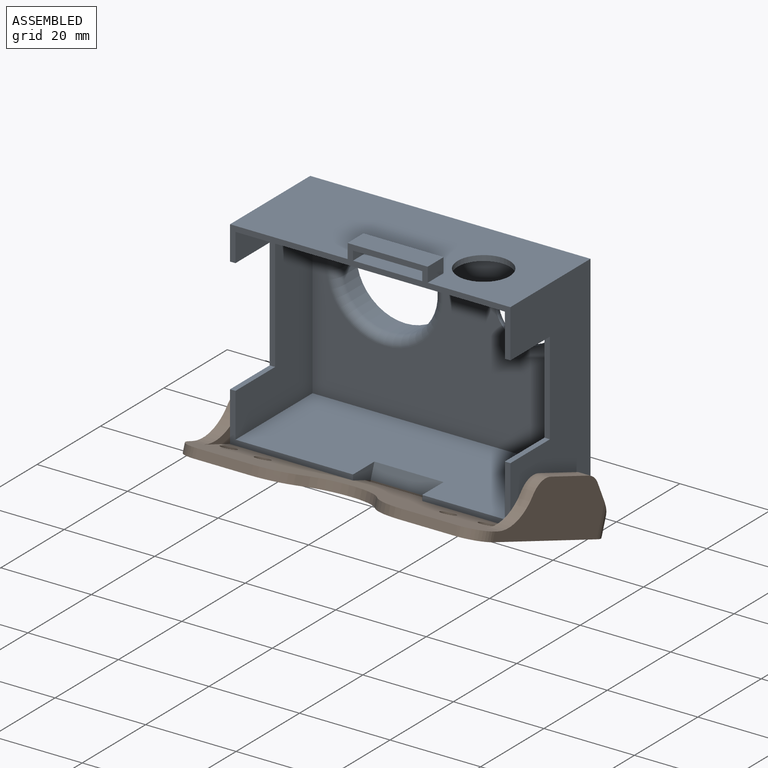
[diagram: assembled view]
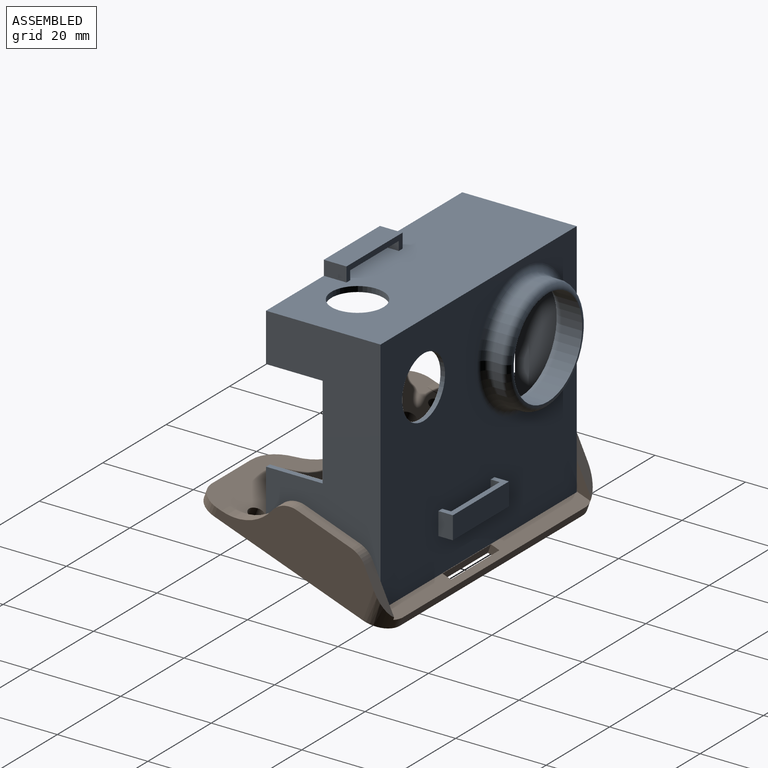
[diagram: assembled view, second angle]
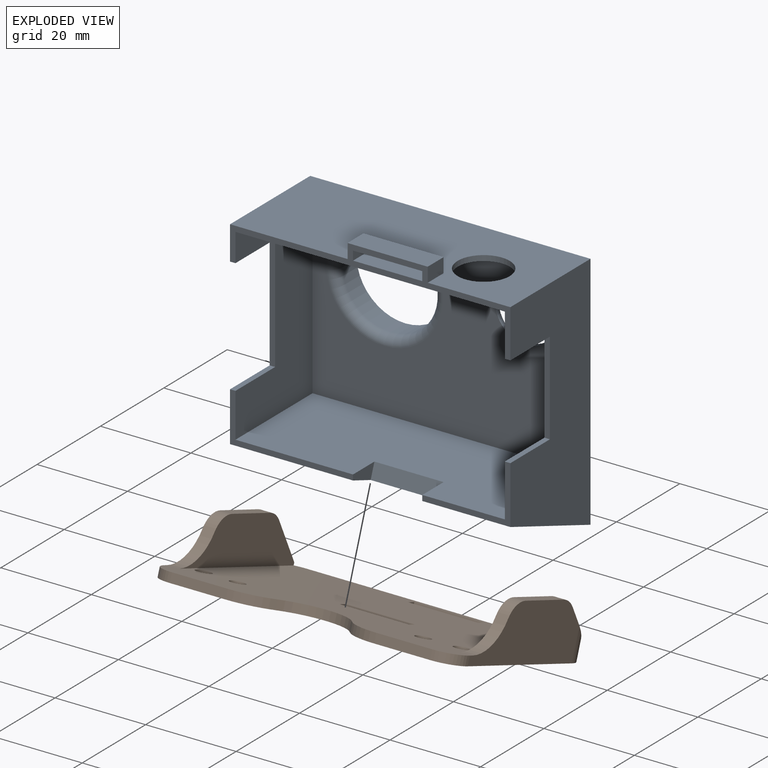
[diagram: exploded view]
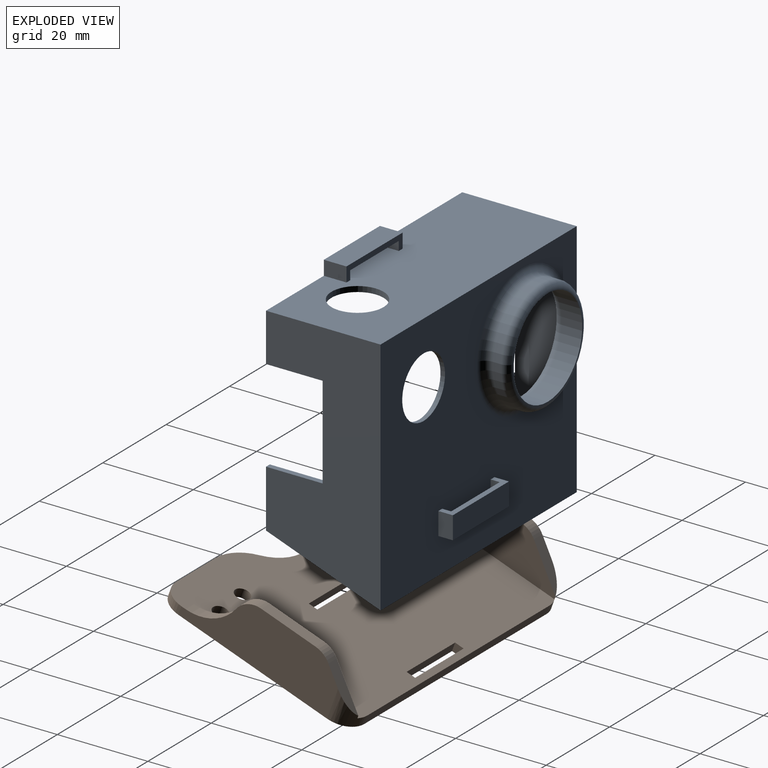
[diagram: exploded view, second angle]
ASSEMBLY  parts=2 mates=2
PART A: 44 faces, bbox 62x30.9x56.3 mm
  f0: plane 19.45x12.75mm, normal (0,1,0), area 37.2mm2, adj f5,f11,f14,f29,f31,f43
  f1: plane 27.17x10.95mm, normal (0,1,0), area 44.3mm2, adj f3,f11,f12,f25,f31,f41
  f2: plane 61.92x13.85mm, normal (0,1,0), area 119.2mm2, adj f3,f4,f5,f12,f13,f14,f17,f18
  f3: plane 53.11x25.3mm, normal (1,0,0), area 908.4mm2, adj f1,f2,f4,f8,f25,f26,f27,f31
  f4: plane 61.92x25.3mm, normal (0,0,1), area 1450.7mm2, adj f2,f3,f5,f8,f17,f19,f20,f22
  f5: plane 53.11x25.3mm, normal (-1,0,0), area 970.9mm2, adj f0,f2,f4,f8,f28,f29,f30,f31
  f6: cylinder r=10.82mm len=21.65mm, axis (0,1,0), area 312.9mm2, adj f16,f32
  f7: cylinder r=6.75mm len=13.5mm, axis (0,1,0), area 42.4mm2, adj f8,f9
  f8: plane 61.92x53.11mm, normal (0,-1,0), area 2479.6mm2, adj f3,f4,f5,f7,f15,f31,f33,f34
  f9: plane 59.52x41.5mm, normal (0,1,0), area 1810.2mm2, adj f7,f11,f12,f13,f14,f16
  f10: cylinder r=12.43mm len=24.85mm, axis (0,1,0), area 156.1mm2, adj f15,f32
  f11: plane 59.52x24.3mm, normal (0,0,1), area 1343.2mm2, adj f0,f1,f9,f12,f14,f41,f42,f43
  f12: plane 41.5x24.3mm, normal (-1,0,0), area 689.7mm2, adj f1,f2,f9,f11,f13,f25,f26,f27
  f13: plane 59.52x24.3mm, normal (0,0,-1), area 1342.5mm2, adj f2,f9,f12,f14,f24
  f14: plane 41.5x24.3mm, normal (1,0,0), area 752.2mm2, adj f0,f2,f9,f11,f13,f28,f29,f30
  f15: torus R=14.43mm, axis (0,-1,0), area 259.6mm2, adj f8,f10
  f16: torus R=12.82mm, axis (0,-1,0), area 228mm2, adj f6,f9
  f17: plane 5x3.2mm, normal (-1,0,0), area 16mm2, adj f2,f4,f18,f23
  f18: plane 17.7x5mm, normal (0,0,1), area 88.5mm2, adj f2,f17,f19,f23
  f19: plane 5x3.2mm, normal (1,0,0), area 16mm2, adj f2,f4,f18,f23
  f20: plane 5x2mm, normal (-1,0,0), area 10mm2, adj f2,f4,f21,f23
  f21: plane 15.3x5mm, normal (0,0,-1), area 76.5mm2, adj f2,f20,f22,f23
  f22: plane 5x2mm, normal (1,0,0), area 10mm2, adj f2,f4,f21,f23
  f23: plane 17.7x3.2mm, normal (0,-1,0), area 26mm2, adj f4,f17,f18,f19,f20,f21,f22
  f24: cylinder r=5.75mm len=11.5mm, axis (0,0,-1), area 43.4mm2, adj f4,f13
  f25: plane 12.5x1.2mm, normal (0,0,1), area 15mm2, adj f1,f3,f12,f26
  f26: plane 25.5x1.2mm, normal (0,1,0), area 30.6mm2, adj f3,f12,f25,f27
  f27: plane 12.5x1.2mm, normal (0,0,-1), area 15mm2, adj f2,f3,f12,f26
  f28: plane 12.5x1.2mm, normal (0,0,-1), area 15mm2, adj f2,f5,f14,f30
  f29: plane 12.5x1.2mm, normal (0,0,1), area 15mm2, adj f0,f5,f14,f30
  f30: plane 20.5x1.2mm, normal (0,1,0), area 24.6mm2, adj f5,f14,f28,f29
  f31: plane 61.92x25.3mm, normal (0,0.34,-0.94), area 1576.5mm2, adj f0,f1,f3,f5,f8,f41,f42,f43
  f32: torus R=10.82mm, axis (0,-1,0), area 187mm2, adj f6,f10
  f33: plane 5x3.2mm, normal (1,0,0), area 16mm2, adj f8,f38,f39,f40
  f34: plane 5x2mm, normal (-1,0,0), area 10mm2, adj f8,f35,f39,f40
  f35: plane 15.3x5mm, normal (0,1,0), area 76.5mm2, adj f34,f36,f39,f40
  f36: plane 5x2mm, normal (1,0,0), area 10mm2, adj f8,f35,f39,f40
  f37: plane 5x3.2mm, normal (-1,0,0), area 16mm2, adj f8,f38,f39,f40
  f38: plane 17.7x5mm, normal (0,-1,0), area 88.5mm2, adj f33,f37,f39,f40
  f39: plane 17.7x3.2mm, normal (0,0,1), area 26mm2, adj f8,f33,f34,f35,f36,f37,f38
  f40: plane 17.7x3.2mm, normal (0,0,-1), area 26mm2, adj f8,f33,f34,f35,f36,f37,f38
  f41: plane 6.74x3.23mm, normal (-1,0,0), area 14.2mm2, adj f1,f11,f31,f42
  f42: plane 15.3x3.23mm, normal (0,0.94,0.34), area 52.5mm2, adj f11,f31,f41,f43
  f43: plane 6.74x3.23mm, normal (1,0,0), area 14.2mm2, adj f0,f11,f31,f42
PART B: 38 faces, bbox 67.5x45x12 mm
  f0: plane 12.35x2mm, normal (0,-1,0), area 24.7mm2, adj f1,f2,f24,f35
  f1: plane 67.5x45mm, normal (0,0,-1), area 2779.3mm2, adj f0,f3,f4,f5,f6,f7,f8,f9
  f2: plane 67.5x45mm, normal (0,0,1), area 2582.4mm2, adj f0,f3,f4,f5,f6,f7,f8,f9
  f3: plane 35x12mm, normal (-1,0,0), area 315.4mm2, adj f1,f2,f12,f15,f18,f20,f22,f23
  f4: plane 12.35x2mm, normal (0,-1,0), area 24.7mm2, adj f1,f2,f23,f34
  f5: plane 35x12mm, normal (1,0,0), area 315.4mm2, adj f1,f2,f14,f16,f17,f19,f21,f24
  f6: cylinder r=1.7mm len=3.4mm, axis (0,0,-1), area 21.4mm2, adj f1,f2
  f7: cylinder r=1.65mm len=3.3mm, axis (0,0,-1), area 20.7mm2, adj f1,f2
  f8: cylinder r=1.7mm len=3.4mm, axis (0,0,-1), area 21.4mm2, adj f1,f2
  f9: plane 57.5x2mm, normal (0,1,0), area 115mm2, adj f1,f2,f21,f22
  f10: cylinder r=1.65mm len=3.3mm, axis (0,0,-1), area 20.7mm2, adj f1,f2
  f11: plane 38.41x10mm, normal (1,0,0), area 257.8mm2, adj f2,f12,f15,f18,f20,f22,f37
  f12: plane 12.79x2.65mm, normal (0,0,1), area 33.9mm2, adj f3,f11,f20,f37
  f13: plane 38.41x10mm, normal (-1,0,0), area 257.8mm2, adj f2,f14,f16,f17,f19,f21,f36
  f14: plane 12.79x2.65mm, normal (0,0,1), area 33.9mm2, adj f5,f13,f19,f36
  f15: plane 7.95x7.95mm, normal (0,0.71,0.71), area 25mm2, adj f3,f11,f20,f22
  f16: plane 7.95x7.95mm, normal (0,0.71,0.71), area 25mm2, adj f5,f13,f19,f21
  f17: cylinder r=10mm len=9.43mm, axis (1,0,0), area 32.6mm2, adj f2,f5,f13,f36
  f18: cylinder r=10mm len=9.43mm, axis (1,0,0), area 32.6mm2, adj f2,f3,f11,f37
  f19: cylinder r=5mm len=3.54mm, axis (1,0,0), area 10.4mm2, adj f5,f13,f14,f16
  f20: cylinder r=5mm len=3.54mm, axis (1,0,0), area 10.4mm2, adj f3,f11,f12,f15
  f21: cylinder r=5mm len=7mm, axis (0,0,1), area 29.5mm2, adj f1,f2,f5,f9,f13,f16
  f22: cylinder r=5mm len=7mm, axis (0,0,-1), area 29.5mm2, adj f1,f2,f3,f9,f11,f15
  f23: cylinder r=5mm len=5mm, axis (0,0,1), area 15.7mm2, adj f1,f2,f3,f4
  f24: cylinder r=5mm len=5mm, axis (0,0,-1), area 15.7mm2, adj f0,f1,f2,f5
  f25: plane 2x2mm, normal (1,0,0), area 4mm2, adj f1,f2,f26,f27
  f26: plane 15.3x2mm, normal (0,-1,0), area 30.6mm2, adj f1,f2,f25,f28
  f27: plane 15.3x2mm, normal (0,1,0), area 30.6mm2, adj f1,f2,f25,f28
  f28: plane 2x2mm, normal (-1,0,0), area 4mm2, adj f1,f2,f26,f27
  f29: plane 2x2mm, normal (-1,0,0), area 4mm2, adj f1,f2,f30,f31
  f30: plane 15.3x2mm, normal (0,1,0), area 30.6mm2, adj f1,f2,f29,f32
  f31: plane 15.3x2mm, normal (0,-1,0), area 30.6mm2, adj f1,f2,f29,f32
  f32: plane 2x2mm, normal (1,0,0), area 4mm2, adj f1,f2,f30,f31
  f33: cylinder r=10mm len=16.4mm, axis (0,0,1), area 38.5mm2, adj f1,f2,f34,f35
  f34: cylinder r=10mm len=8.2mm, axis (0,0,1), area 19.2mm2, adj f1,f2,f4,f33
  f35: cylinder r=10mm len=8.2mm, axis (0,0,1), area 19.2mm2, adj f0,f1,f2,f33
  f36: cylinder r=5mm len=4.71mm, axis (1,0,0), area 16.3mm2, adj f5,f13,f14,f17
  f37: cylinder r=5mm len=4.71mm, axis (1,0,0), area 16.3mm2, adj f3,f11,f12,f18
PLACE A rot(axis=(0,0,1),180deg) t=(38.37,68.94,65.65)mm
PLACE B rot(axis=(-1,0,0),20deg) t=(38.36,-41,72.75)mm
MATE planar B.f2 <-> A.f31  axis (0,0.34,0.94) through (38.26,53.04,40.64)mm
MATE parallel A.f34 <-> B.f32  axis (1,0,0) through (34.58,70.94,44.9)mm
